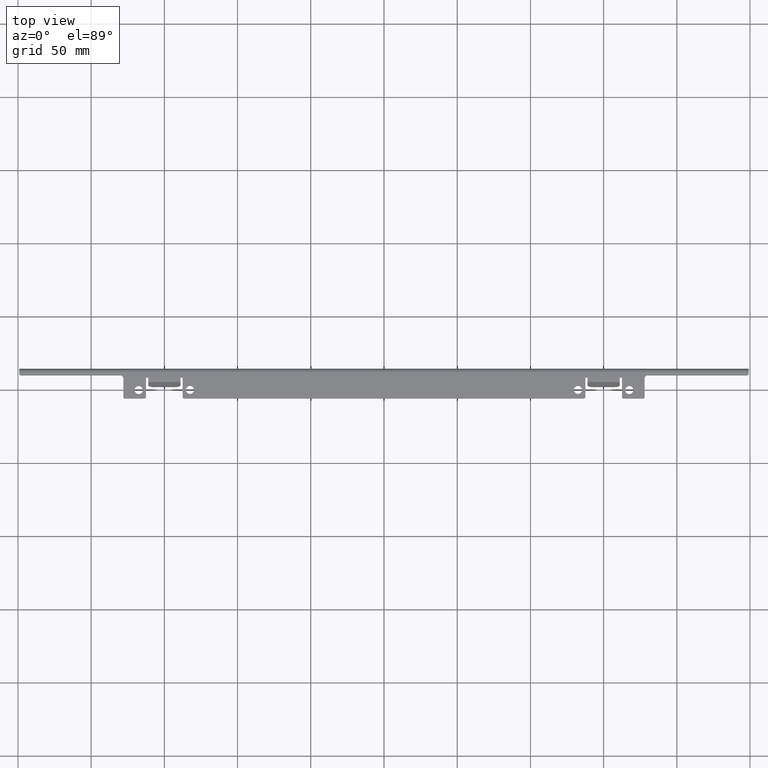
[diagram: clean part render]
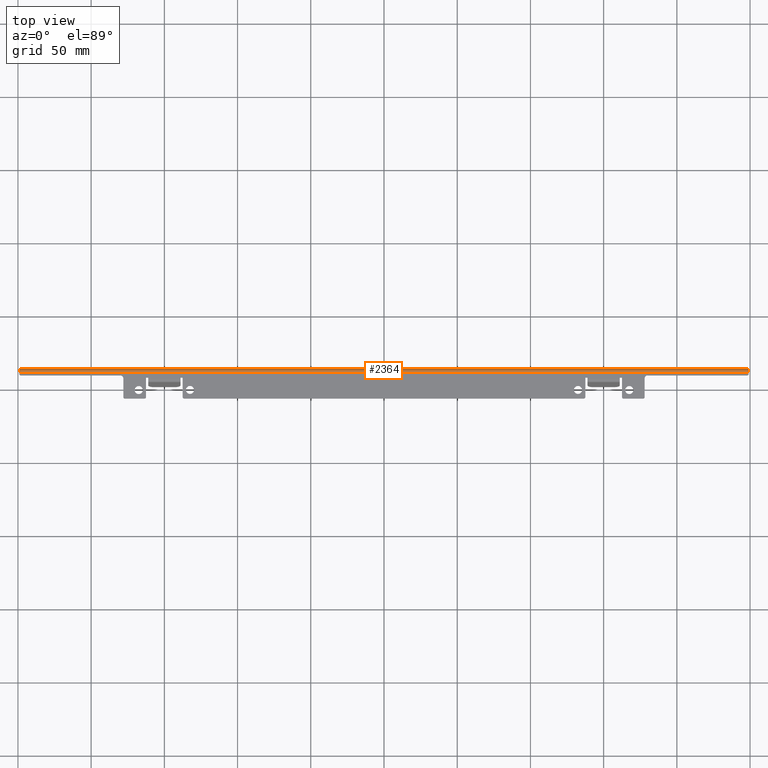
[diagram: same view with one face highlighted and labeled with its STEP entity id]
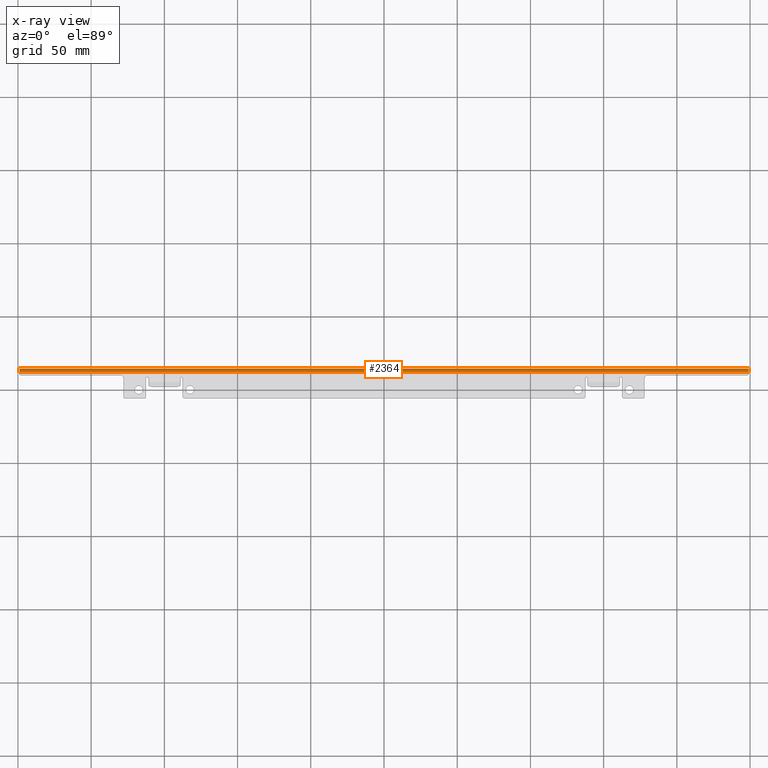
[diagram: x-ray of the same camera — body ghosted, the highlighted face saturated]
A machine part, top view. The second image highlights one B-rep face of the part: STEP entity #2364.
The next image is the same camera in x-ray: the body ghosted, the highlighted face saturated — about 0% of this face is hidden behind the body in this view.
In plain terms, the highlighted cylindrical surface (edge-blend (fillet) strip) has radius 2.5 mm, axis along (1, 0, 0).
Its self-contained STEP definition (entity closure, byte-faithful):
#47 = AXIS2_PLACEMENT_3D ( 'NONE', #1963, #2337, #2347 ) ;
#103 = DIRECTION ( 'NONE',  ( 1.000000000000000000, 0.0000000000000000000, 0.0000000000000000000 ) ) ;
#108 = EDGE_CURVE ( 'NONE', #1141, #1550, #415, .T. ) ;
#191 = DIRECTION ( 'NONE',  ( -1.000000000000000000, -0.0000000000000000000, -0.0000000000000000000 ) ) ;
#374 = VERTEX_POINT ( 'NONE', #1520 ) ;
#415 = LINE ( 'NONE', #764, #2356 ) ;
#417 = LINE ( 'NONE', #1659, #2244 ) ;
#618 = EDGE_CURVE ( 'NONE', #1141, #374, #1442, .T. ) ;
#646 = CARTESIAN_POINT ( 'NONE',  ( 249.0999999999999900, 11.57195934717847200, -2.499999999999997800 ) ) ;
#725 = EDGE_LOOP ( 'NONE', ( #2088, #1182, #807, #2057 ) ) ;
#728 = EDGE_CURVE ( 'NONE', #374, #1547, #417, .T. ) ;
#764 = CARTESIAN_POINT ( 'NONE',  ( -249.0999999999999900, 14.06244609240783900, -2.717889356869134700 ) ) ;
#771 = FACE_OUTER_BOUND ( 'NONE', #725, .T. ) ;
#782 = CIRCLE ( 'NONE', #1016, 2.500000000000004000 ) ;
#807 = ORIENTED_EDGE ( 'NONE', *, *, #108, .T. ) ;
#884 = DIRECTION ( 'NONE',  ( -1.000000000000000000, -0.0000000000000000000, -0.0000000000000000000 ) ) ;
#947 = DIRECTION ( 'NONE',  ( 0.0000000000000000000, 2.081668171172165400E-015, -1.000000000000000000 ) ) ;
#961 = EDGE_CURVE ( 'NONE', #1547, #1550, #782, .T. ) ;
#1016 = AXIS2_PLACEMENT_3D ( 'NONE', #1330, #191, #947 ) ;
#1141 = VERTEX_POINT ( 'NONE', #1246 ) ;
#1182 = ORIENTED_EDGE ( 'NONE', *, *, #618, .F. ) ;
#1246 = CARTESIAN_POINT ( 'NONE',  ( 249.0999999999999900, 14.06244609240782300, -2.717889356869132500 ) ) ;
#1275 = CARTESIAN_POINT ( 'NONE',  ( -249.0999999999999900, 11.57195934717847100, 0.0000000000000000000 ) ) ;
#1330 = CARTESIAN_POINT ( 'NONE',  ( -249.0999999999999900, 11.57195934717847200, -2.499999999999997800 ) ) ;
#1442 = CIRCLE ( 'NONE', #2023, 2.500000000000004000 ) ;
#1461 = DIRECTION ( 'NONE',  ( -1.000000000000000000, -0.0000000000000000000, -0.0000000000000000000 ) ) ;
#1520 = CARTESIAN_POINT ( 'NONE',  ( 249.0999999999999900, 11.57195934717847200, 6.071532165918824800E-015 ) ) ;
#1547 = VERTEX_POINT ( 'NONE', #1275 ) ;
#1550 = VERTEX_POINT ( 'NONE', #2425 ) ;
#1659 = CARTESIAN_POINT ( 'NONE',  ( -249.0999999999999900, 11.57195934717847100, 0.0000000000000000000 ) ) ;
#1902 = CYLINDRICAL_SURFACE ( 'NONE', #47, 2.500000000000003100 ) ;
#1963 = CARTESIAN_POINT ( 'NONE',  ( 249.0999999999999900, 11.57195934717847200, -2.499999999999997800 ) ) ;
#2023 = AXIS2_PLACEMENT_3D ( 'NONE', #646, #103, #2343 ) ;
#2057 = ORIENTED_EDGE ( 'NONE', *, *, #961, .F. ) ;
#2088 = ORIENTED_EDGE ( 'NONE', *, *, #728, .F. ) ;
#2244 = VECTOR ( 'NONE', #884, 1000.000000000000000 ) ;
#2337 = DIRECTION ( 'NONE',  ( 1.000000000000000000, 0.0000000000000000000, 0.0000000000000000000 ) ) ;
#2343 = DIRECTION ( 'NONE',  ( 0.0000000000000000000, 0.0000000000000000000, -1.000000000000000000 ) ) ;
#2347 = DIRECTION ( 'NONE',  ( 0.0000000000000000000, 0.9961946980917458800, -0.08715574274765480700 ) ) ;
#2356 = VECTOR ( 'NONE', #1461, 1000.000000000000000 ) ;
#2364 = ADVANCED_FACE ( 'NONE', ( #771 ), #1902, .T. ) ;
#2425 = CARTESIAN_POINT ( 'NONE',  ( -249.1000000000001100, 14.06244609240784100, -2.717889356869135100 ) ) ;